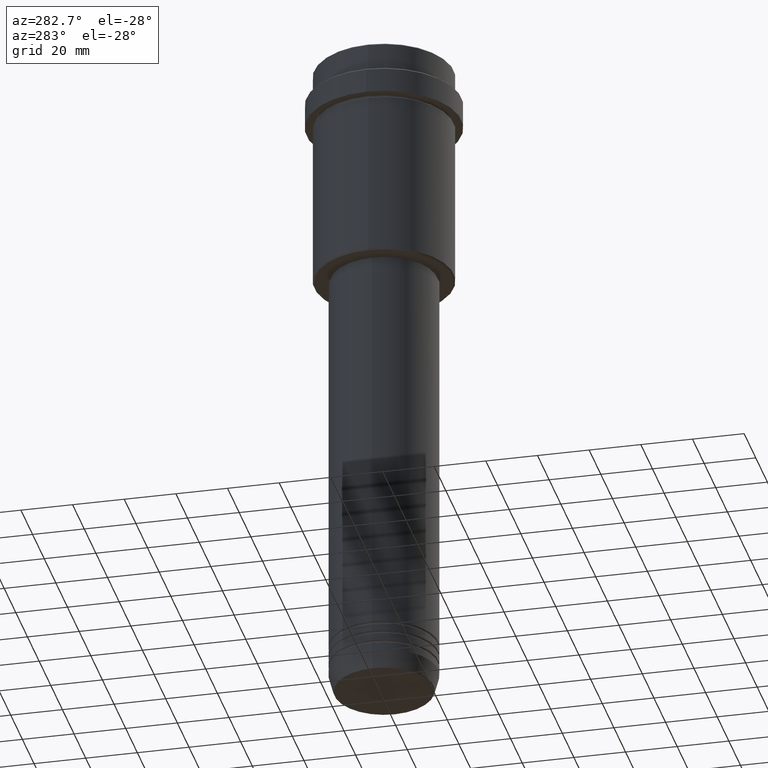
[diagram: clean part render]
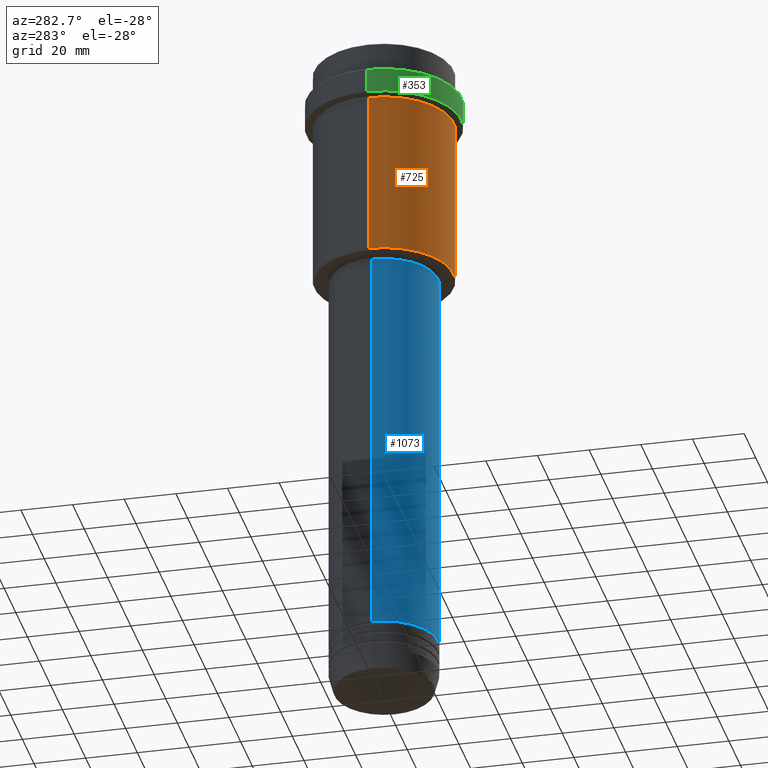
[diagram: same view with three faces highlighted in distinct colors, each labeled with its STEP entity id]
A machine part, auxiliary view with three faces highlighted in distinct colors.
Their STEP definitions:

[orange] entity #725 — the highlighted cylindrical surface (partial cylindrical patch) has radius 27 mm, axis along (-0, -0, 1).
#26 = VERTEX_POINT ( 'NONE', #135 ) ;
#34 = VERTEX_POINT ( 'NONE', #1196 ) ;
#45 = DIRECTION ( 'NONE',  ( 1.000000000000000000, 0.000000000000000000, 0.000000000000000000 ) ) ;
#135 = CARTESIAN_POINT ( 'NONE',  ( 26.99999999999999645, 0.000000000000000000, -87.50000000000004263 ) ) ;
#180 = CARTESIAN_POINT ( 'NONE',  ( 26.99999999999999645, 0.000000000000000000, 0.000000000000000000 ) ) ;
#194 = CIRCLE ( 'NONE', #810, 26.99999999999999645 ) ;
#207 = VERTEX_POINT ( 'NONE', #538 ) ;
#234 = VERTEX_POINT ( 'NONE', #772 ) ;
#342 = ORIENTED_EDGE ( 'NONE', *, *, #471, .T. ) ;
#360 = ORIENTED_EDGE ( 'NONE', *, *, #1276, .F. ) ;
#372 = AXIS2_PLACEMENT_3D ( 'NONE', #1369, #501, #716 ) ;
#433 = CYLINDRICAL_SURFACE ( 'NONE', #740, 26.99999999999999645 ) ;
#471 = EDGE_CURVE ( 'NONE', #234, #26, #786, .T. ) ;
#501 = DIRECTION ( 'NONE',  ( -0.000000000000000000, -0.000000000000000000, 1.000000000000000000 ) ) ;
#512 = VECTOR ( 'NONE', #1068, 1000.000000000000000 ) ;
#536 = FACE_OUTER_BOUND ( 'NONE', #1118, .T. ) ;
#538 = CARTESIAN_POINT ( 'NONE',  ( -26.99999999999999645, 3.306546357697853339E-15, -23.00000000000000000 ) ) ;
#577 = EDGE_CURVE ( 'NONE', #26, #34, #841, .T. ) ;
#598 = CARTESIAN_POINT ( 'NONE',  ( -26.99999999999999645, 3.306546357697853339E-15, 0.000000000000000000 ) ) ;
#716 = DIRECTION ( 'NONE',  ( -1.000000000000000000, 0.000000000000000000, 0.000000000000000000 ) ) ;
#725 = ADVANCED_FACE ( 'NONE', ( #536 ), #433, .T. ) ;
#740 = AXIS2_PLACEMENT_3D ( 'NONE', #1060, #1207, #1175 ) ;
#772 = CARTESIAN_POINT ( 'NONE',  ( -26.99999999999999645, 3.306546357697853339E-15, -87.50000000000004263 ) ) ;
#786 = CIRCLE ( 'NONE', #372, 26.99999999999999645 ) ;
#808 = VECTOR ( 'NONE', #813, 1000.000000000000000 ) ;
#810 = AXIS2_PLACEMENT_3D ( 'NONE', #1212, #1019, #45 ) ;
#813 = DIRECTION ( 'NONE',  ( -0.000000000000000000, -0.000000000000000000, 1.000000000000000000 ) ) ;
#841 = LINE ( 'NONE', #180, #512 ) ;
#983 = EDGE_CURVE ( 'NONE', #234, #207, #1025, .T. ) ;
#1019 = DIRECTION ( 'NONE',  ( -0.000000000000000000, -0.000000000000000000, 1.000000000000000000 ) ) ;
#1025 = LINE ( 'NONE', #598, #808 ) ;
#1060 = CARTESIAN_POINT ( 'NONE',  ( 0.000000000000000000, 0.000000000000000000, 0.000000000000000000 ) ) ;
#1068 = DIRECTION ( 'NONE',  ( -0.000000000000000000, -0.000000000000000000, 1.000000000000000000 ) ) ;
#1118 = EDGE_LOOP ( 'NONE', ( #1329, #342, #1154, #360 ) ) ;
#1154 = ORIENTED_EDGE ( 'NONE', *, *, #577, .T. ) ;
#1175 = DIRECTION ( 'NONE',  ( 1.000000000000000000, 0.000000000000000000, 0.000000000000000000 ) ) ;
#1196 = CARTESIAN_POINT ( 'NONE',  ( 26.99999999999999645, 0.000000000000000000, -23.00000000000000000 ) ) ;
#1207 = DIRECTION ( 'NONE',  ( -0.000000000000000000, -0.000000000000000000, 1.000000000000000000 ) ) ;
#1212 = CARTESIAN_POINT ( 'NONE',  ( 0.000000000000000000, 0.000000000000000000, -23.00000000000000000 ) ) ;
#1276 = EDGE_CURVE ( 'NONE', #207, #34, #194, .T. ) ;
#1329 = ORIENTED_EDGE ( 'NONE', *, *, #983, .F. ) ;
#1369 = CARTESIAN_POINT ( 'NONE',  ( 0.000000000000000000, 0.000000000000000000, -87.50000000000004263 ) ) ;

[blue] entity #1073 — the highlighted cylindrical surface (partial cylindrical patch) has radius 21 mm, axis along (-0, -0, 1).
#41 = CARTESIAN_POINT ( 'NONE',  ( -20.99999999999999645, 2.571758278209441267E-15, 0.000000000000000000 ) ) ;
#66 = FACE_OUTER_BOUND ( 'NONE', #95, .T. ) ;
#76 = CARTESIAN_POINT ( 'NONE',  ( -21.00000000000000000, 2.571758278209441661E-15, -243.9999999999998863 ) ) ;
#95 = EDGE_LOOP ( 'NONE', ( #149, #1297, #623, #763 ) ) ;
#149 = ORIENTED_EDGE ( 'NONE', *, *, #913, .F. ) ;
#181 = CARTESIAN_POINT ( 'NONE',  ( 0.000000000000000000, 0.000000000000000000, -243.9999999999998863 ) ) ;
#211 = EDGE_CURVE ( 'NONE', #714, #664, #938, .T. ) ;
#259 = CARTESIAN_POINT ( 'NONE',  ( 20.99999999999999645, 0.000000000000000000, 0.000000000000000000 ) ) ;
#331 = VECTOR ( 'NONE', #369, 1000.000000000000000 ) ;
#356 = CIRCLE ( 'NONE', #1082, 21.00000000000000000 ) ;
#369 = DIRECTION ( 'NONE',  ( -0.000000000000000000, -0.000000000000000000, 1.000000000000000000 ) ) ;
#376 = CARTESIAN_POINT ( 'NONE',  ( 0.000000000000000000, 0.000000000000000000, 0.000000000000000000 ) ) ;
#380 = EDGE_CURVE ( 'NONE', #980, #664, #465, .T. ) ;
#383 = DIRECTION ( 'NONE',  ( -0.000000000000000000, -0.000000000000000000, 1.000000000000000000 ) ) ;
#465 = LINE ( 'NONE', #259, #939 ) ;
#492 = CARTESIAN_POINT ( 'NONE',  ( 21.00000000000000000, 0.000000000000000000, -243.9999999999998863 ) ) ;
#623 = ORIENTED_EDGE ( 'NONE', *, *, #380, .T. ) ;
#649 = AXIS2_PLACEMENT_3D ( 'NONE', #967, #992, #870 ) ;
#664 = VERTEX_POINT ( 'NONE', #974 ) ;
#714 = VERTEX_POINT ( 'NONE', #1089 ) ;
#763 = ORIENTED_EDGE ( 'NONE', *, *, #211, .F. ) ;
#870 = DIRECTION ( 'NONE',  ( 1.000000000000000000, 0.000000000000000000, 0.000000000000000000 ) ) ;
#899 = DIRECTION ( 'NONE',  ( -0.000000000000000000, -0.000000000000000000, 1.000000000000000000 ) ) ;
#911 = LINE ( 'NONE', #41, #331 ) ;
#913 = EDGE_CURVE ( 'NONE', #1090, #714, #911, .T. ) ;
#929 = DIRECTION ( 'NONE',  ( 1.000000000000000000, 0.000000000000000000, 0.000000000000000000 ) ) ;
#938 = CIRCLE ( 'NONE', #649, 20.99999999999999645 ) ;
#939 = VECTOR ( 'NONE', #899, 1000.000000000000000 ) ;
#967 = CARTESIAN_POINT ( 'NONE',  ( 0.000000000000000000, 0.000000000000000000, -89.00000000000002842 ) ) ;
#974 = CARTESIAN_POINT ( 'NONE',  ( 20.99999999999999645, 0.000000000000000000, -89.00000000000002842 ) ) ;
#980 = VERTEX_POINT ( 'NONE', #492 ) ;
#992 = DIRECTION ( 'NONE',  ( -0.000000000000000000, -0.000000000000000000, 1.000000000000000000 ) ) ;
#1036 = AXIS2_PLACEMENT_3D ( 'NONE', #376, #383, #929 ) ;
#1049 = DIRECTION ( 'NONE',  ( -0.000000000000000000, -0.000000000000000000, 1.000000000000000000 ) ) ;
#1073 = ADVANCED_FACE ( 'NONE', ( #66 ), #1162, .T. ) ;
#1082 = AXIS2_PLACEMENT_3D ( 'NONE', #181, #1049, #1389 ) ;
#1089 = CARTESIAN_POINT ( 'NONE',  ( -20.99999999999999645, 2.571758278209441267E-15, -89.00000000000002842 ) ) ;
#1090 = VERTEX_POINT ( 'NONE', #76 ) ;
#1162 = CYLINDRICAL_SURFACE ( 'NONE', #1036, 20.99999999999999645 ) ;
#1297 = ORIENTED_EDGE ( 'NONE', *, *, #1398, .T. ) ;
#1389 = DIRECTION ( 'NONE',  ( 1.000000000000000000, 0.000000000000000000, 0.000000000000000000 ) ) ;
#1398 = EDGE_CURVE ( 'NONE', #1090, #980, #356, .T. ) ;

[green] entity #353 — the highlighted cylindrical surface (partial cylindrical patch) has radius 30 mm, axis along (-0, -0, 1).
#58 = CARTESIAN_POINT ( 'NONE',  ( -30.00000000000000000, 3.673940397442059178E-15, 0.000000000000000000 ) ) ;
#65 = ORIENTED_EDGE ( 'NONE', *, *, #90, .T. ) ;
#74 = LINE ( 'NONE', #733, #99 ) ;
#90 = EDGE_CURVE ( 'NONE', #257, #756, #1358, .T. ) ;
#99 = VECTOR ( 'NONE', #946, 1000.000000000000000 ) ;
#177 = ORIENTED_EDGE ( 'NONE', *, *, #1028, .F. ) ;
#190 = EDGE_LOOP ( 'NONE', ( #177, #65, #588, #1051 ) ) ;
#206 = DIRECTION ( 'NONE',  ( -0.000000000000000000, -0.000000000000000000, 1.000000000000000000 ) ) ;
#257 = VERTEX_POINT ( 'NONE', #272 ) ;
#272 = CARTESIAN_POINT ( 'NONE',  ( -29.99999999999999645, 3.673940397442058389E-15, -22.00000000000000355 ) ) ;
#280 = DIRECTION ( 'NONE',  ( 1.000000000000000000, 0.000000000000000000, 0.000000000000000000 ) ) ;
#285 = AXIS2_PLACEMENT_3D ( 'NONE', #706, #1116, #576 ) ;
#307 = DIRECTION ( 'NONE',  ( 0.000000000000000000, 0.000000000000000000, -1.000000000000000000 ) ) ;
#315 = CARTESIAN_POINT ( 'NONE',  ( 29.99999999999999645, 0.000000000000000000, -22.00000000000000355 ) ) ;
#321 = CARTESIAN_POINT ( 'NONE',  ( 30.00000000000000000, 0.000000000000000000, -12.50000000000000888 ) ) ;
#353 = ADVANCED_FACE ( 'NONE', ( #370 ), #691, .T. ) ;
#370 = FACE_OUTER_BOUND ( 'NONE', #190, .T. ) ;
#576 = DIRECTION ( 'NONE',  ( 1.000000000000000000, 0.000000000000000000, 0.000000000000000000 ) ) ;
#588 = ORIENTED_EDGE ( 'NONE', *, *, #608, .T. ) ;
#608 = EDGE_CURVE ( 'NONE', #756, #760, #74, .T. ) ;
#629 = CIRCLE ( 'NONE', #806, 30.00000000000000000 ) ;
#636 = EDGE_CURVE ( 'NONE', #760, #1373, #629, .T. ) ;
#691 = CYLINDRICAL_SURFACE ( 'NONE', #285, 30.00000000000000000 ) ;
#706 = CARTESIAN_POINT ( 'NONE',  ( 0.000000000000000000, 0.000000000000000000, 0.000000000000000000 ) ) ;
#715 = DIRECTION ( 'NONE',  ( -0.000000000000000000, -0.000000000000000000, 1.000000000000000000 ) ) ;
#717 = CARTESIAN_POINT ( 'NONE',  ( 0.000000000000000000, 0.000000000000000000, -12.50000000000000888 ) ) ;
#733 = CARTESIAN_POINT ( 'NONE',  ( 30.00000000000000000, 0.000000000000000000, 0.000000000000000000 ) ) ;
#756 = VERTEX_POINT ( 'NONE', #315 ) ;
#760 = VERTEX_POINT ( 'NONE', #321 ) ;
#806 = AXIS2_PLACEMENT_3D ( 'NONE', #717, #307, #280 ) ;
#946 = DIRECTION ( 'NONE',  ( -0.000000000000000000, -0.000000000000000000, 1.000000000000000000 ) ) ;
#993 = VECTOR ( 'NONE', #715, 1000.000000000000000 ) ;
#1028 = EDGE_CURVE ( 'NONE', #257, #1373, #1263, .T. ) ;
#1051 = ORIENTED_EDGE ( 'NONE', *, *, #636, .T. ) ;
#1100 = AXIS2_PLACEMENT_3D ( 'NONE', #1310, #206, #1321 ) ;
#1116 = DIRECTION ( 'NONE',  ( -0.000000000000000000, -0.000000000000000000, 1.000000000000000000 ) ) ;
#1263 = LINE ( 'NONE', #58, #993 ) ;
#1272 = CARTESIAN_POINT ( 'NONE',  ( -30.00000000000000000, 3.673940397442059178E-15, -12.50000000000000888 ) ) ;
#1310 = CARTESIAN_POINT ( 'NONE',  ( 0.000000000000000000, 0.000000000000000000, -22.00000000000000355 ) ) ;
#1321 = DIRECTION ( 'NONE',  ( 1.000000000000000000, 0.000000000000000000, 0.000000000000000000 ) ) ;
#1358 = CIRCLE ( 'NONE', #1100, 29.99999999999999645 ) ;
#1373 = VERTEX_POINT ( 'NONE', #1272 ) ;